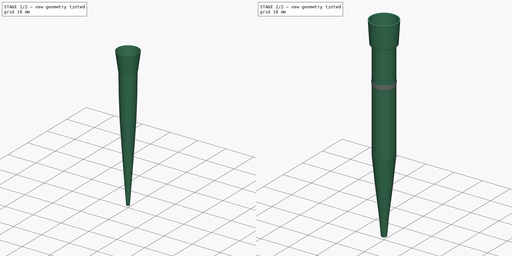
[diagram: build sequence overview — one tinted view per stage of 2, left to right]
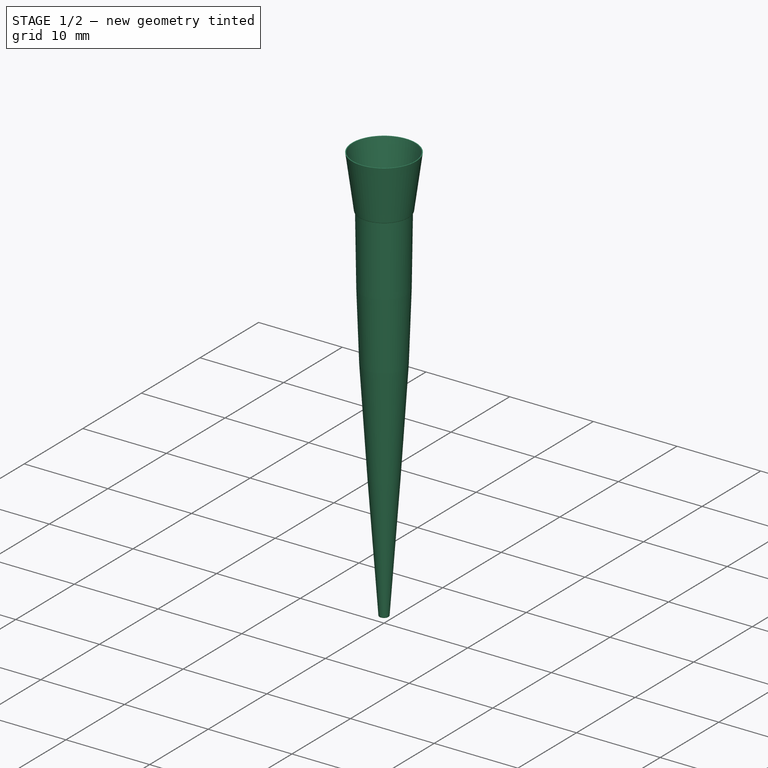
[diagram: stage 1 of 2 — iso view after this stage's code; geometry added in this stage tinted green]
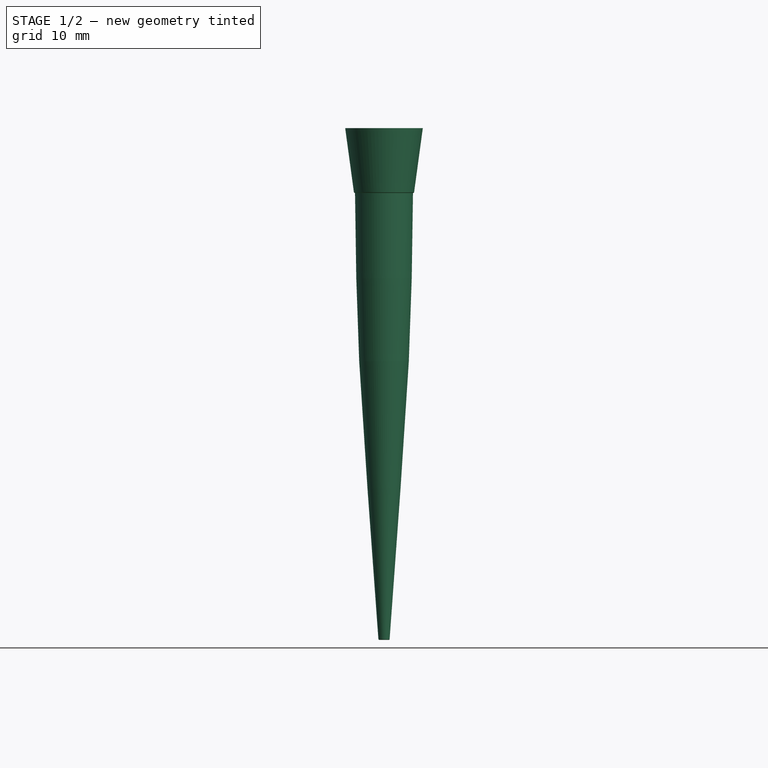
[diagram: stage 1 of 2 — front view after this stage's code; geometry added in this stage tinted green]
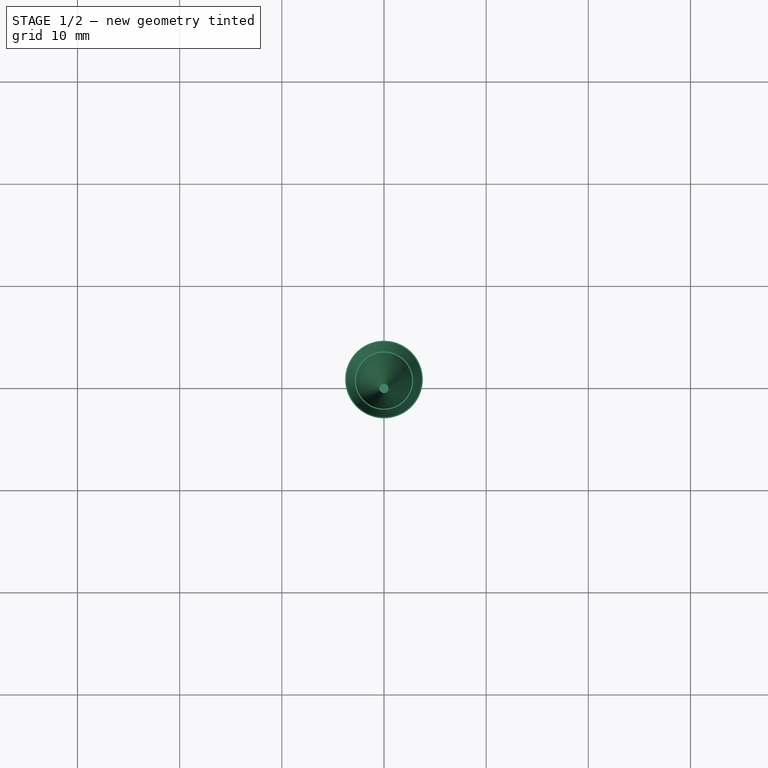
[diagram: stage 1 of 2 — top view after this stage's code; geometry added in this stage tinted green]
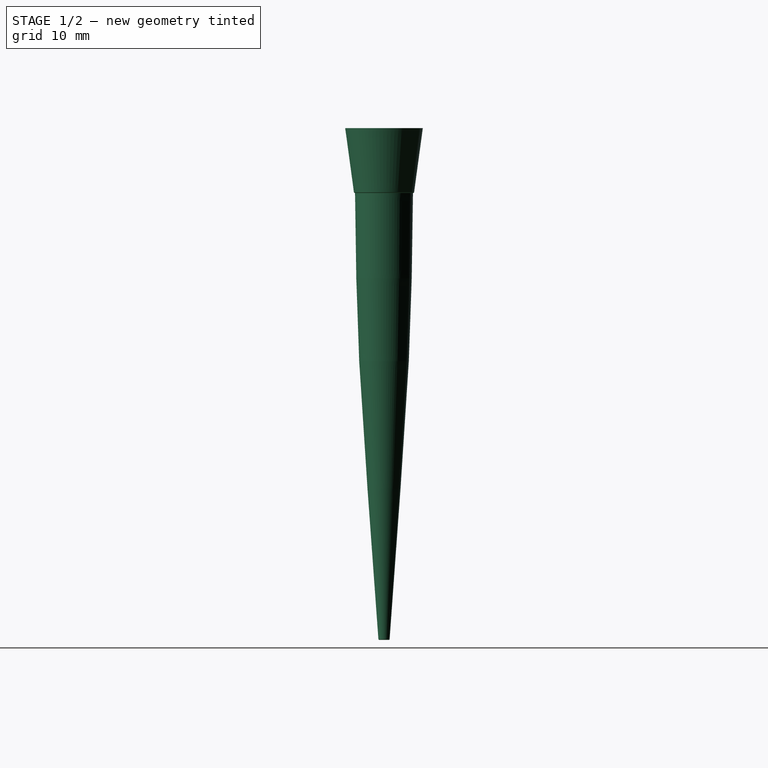
[diagram: stage 1 of 2 — right view after this stage's code; geometry added in this stage tinted green]
FCSTD DOCUMENT  (FreeCAD 0.20R27422 (Git))
Label: Pipette tips
License: All rights reserved
LicenseURL: http://en.wikipedia.org/wiki/All_rights_reserved
objects: Sketcher::SketchObject×2, Image::ImagePlane×2, PartDesign::Revolution×2, PartDesign::Body×2, Part::Thickness×2, TechDraw::DrawSVGTemplate×2, TechDraw::DrawPage×2, TechDraw::DrawViewPart×1
note: 10 computed .brp shape members not serialized (recipe doc carries the construction recipe); baked Part::Feature solids carry a one-line shape summary decoded from their .brp

FEATURE [Image::ImagePlane] ImagePlane001  label="ImagePlane 2-200"
  Placement = pos=(0,0,30.5) rot=(0.57735,0.57735,0.57735;2.0944rad)
  XSize = 46.2316
  YSize = 84.1801
FEATURE [Sketcher::SketchObject] Sketch001
  FullyConstrained = false
  MapMode = 5
  Placement = pos=(0,0,0) rot=(0.57735,0.57735,0.57735;2.0944rad)
  Support = -> [YZ_Plane001]
  sketch-geometry (9):
    g0: LineSegment StartX=0 StartY=0 StartZ=0 EndX=0.45 EndY=0 EndZ=0
    g1: LineSegment StartX=0.45 StartY=0 StartZ=0 EndX=1.51756 EndY=14.7217 EndZ=0
    g2: LineSegment StartX=1.51756 StartY=14.7217 StartZ=0 EndX=2.32977 EndY=27.1891 EndZ=0
    g3: LineSegment StartX=2.32977 StartY=27.1891 StartZ=0 EndX=2.61404 EndY=35.3 EndZ=0
    g4: LineSegment StartX=2.61404 StartY=35.3 StartZ=0 EndX=2.73889 EndY=43.75 EndZ=0
    g5: LineSegment StartX=2.73889 StartY=43.75 StartZ=0 EndX=2.85 EndY=43.75 EndZ=0
    g6: LineSegment StartX=2.85 StartY=43.75 StartZ=0 EndX=3.7 EndY=50 EndZ=0
    g7: LineSegment StartX=3.7 StartY=50 StartZ=0 EndX=0 EndY=50 EndZ=0
    g8: LineSegment StartX=0 StartY=0 StartZ=0 EndX=0 EndY=50 EndZ=0
  constraints (20):
    c: Coincident(g0,g-1)
    c: PointOnObject(g0,g-1)
    c: Coincident(g1,g0)
    c: Coincident(g2,g1)
    c: Coincident(g3,g2)
    c: Coincident(g4,g3)
    c: Coincident(g5,g4)
    c: Coincident(g6,g5)
    c: Coincident(g7,g6)
    c: PointOnObject(g7,g-2)
    c: Horizontal(g7)
    c: Horizontal(g5)
    c: DistanceX(g7,g5) = 2.85
    c: DistanceX(g7,g6) = 3.7
    c: DistanceY(g4,g6) = 6.25
    c: DistanceY(g0,g6) = 50
    c: DistanceY(g0,g3) = 35.3
    c: DistanceX(g0,g0) = 0.45
    c: Coincident(g8,g0)
    c: Coincident(g8,g7)
FEATURE [PartDesign::Revolution] Revolution001
  Angle = 360
  Axis = (-2e-16,3e-16,1)
  Base = (0,0,0)
  Placement = pos=(0,0,0) rot=(0.57735,0.57735,0.57735;2.0944rad)
  Profile = -> Sketch001
  ReferenceAxis = -> Sketch001 [V_Axis]
  Reversed = true
FEATURE [PartDesign::Body] Body001  label="2-200 tip base"
  Group = -> [Sketch001,Revolution001]
  Origin = -> Origin001
  Tip = -> Revolution001
FEATURE [Part::Thickness] Thickness001  label="2-200 tip"
  Faces = -> Revolution001 [Face8]
  Intersection = false
  Join = 0
  Mode = 0
  SelfIntersection = false
  Value = 0.1
FEATURE [TechDraw::DrawSVGTemplate] Template
  EditableTexts = Designed_by_Name=Designed by Name; Drawing_number=Drawing number; FC-Date=Date; FC-SC=Scale; FC-SH=Sheet; FC-Title=Title; Subtitle=Subtitle; Weight=Weight
  Height = 210
  Orientation = 1
  Width = 297
FEATURE [TechDraw::DrawPage] Page
  KeepUpdated = true
  NextBalloonIndex = 1
  ProjectionType = 0
  Template = -> Template
FEATURE [TechDraw::DrawSVGTemplate] Template001
  Height = 841
  Orientation = 1
  Width = 1189
FEATURE [TechDraw::DrawViewPart] View
  CoarseView = false
  Direction = (0.707,0,0.707)
  Focus = 100
  HardHidden = false
  IsoCount = 0
  IsoHidden = false
  IsoVisible = false
  LockPosition = false
  Perspective = false
  Rotation = 0
  ScaleType = 0
  SeamHidden = false
  SeamVisible = true
  SmoothHidden = false
  SmoothVisible = true
  Source = -> [Thickness001]
  X = 316.681
  XDirection = (0,1,0)
  Y = 384.674
FEATURE [TechDraw::DrawPage] Page001
  KeepUpdated = true
  NextBalloonIndex = 1
  ProjectionType = 0
  Template = -> Template001
  Views = -> [View]
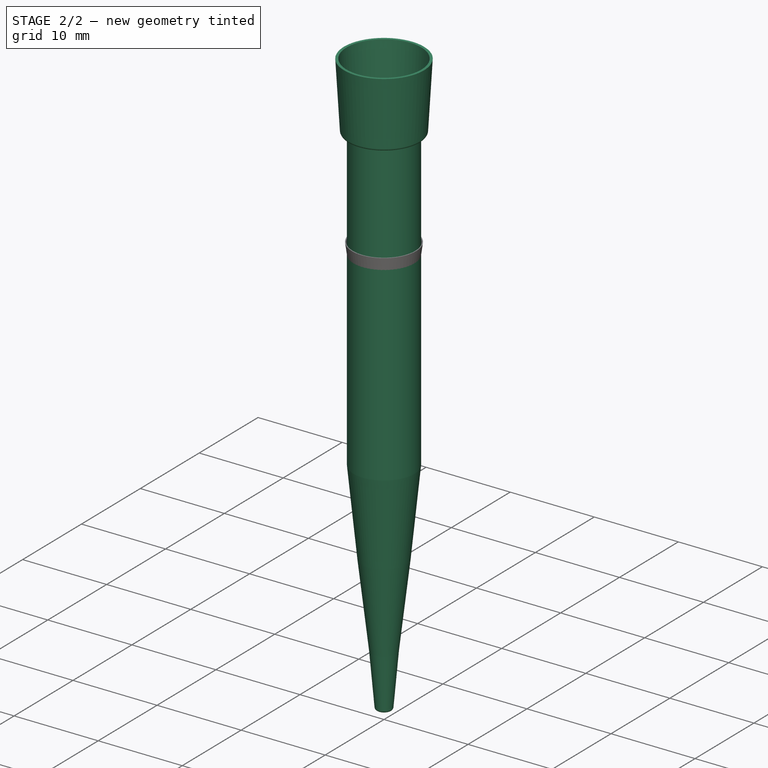
[diagram: stage 2 of 2 — iso view after this stage's code; geometry added in this stage tinted green]
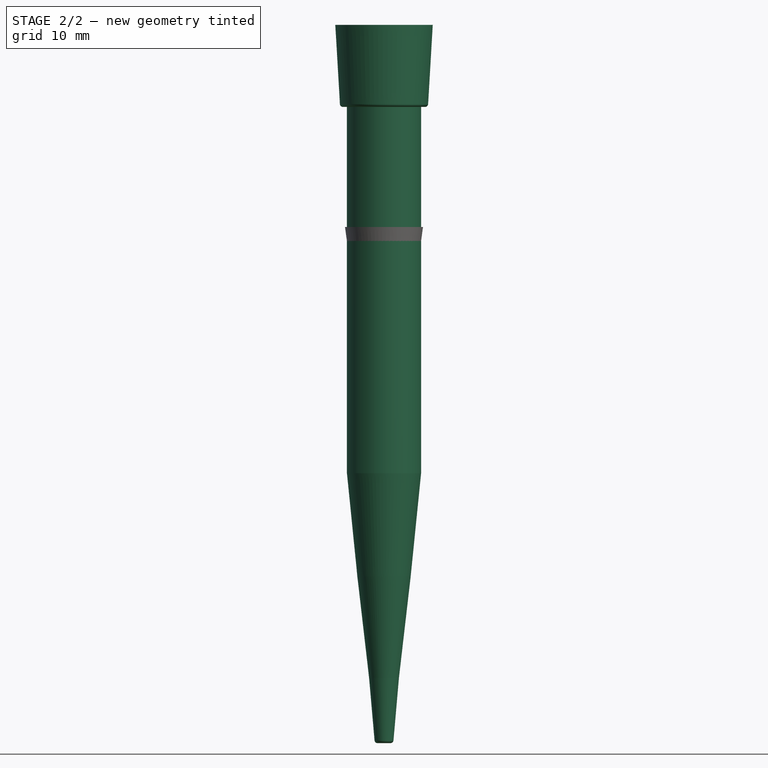
[diagram: stage 2 of 2 — front view after this stage's code; geometry added in this stage tinted green]
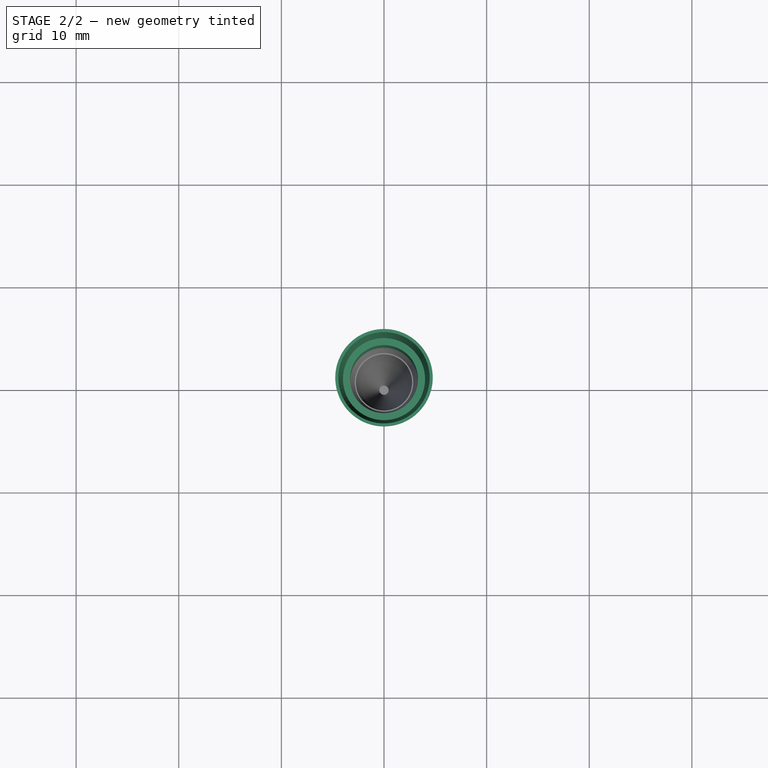
[diagram: stage 2 of 2 — top view after this stage's code; geometry added in this stage tinted green]
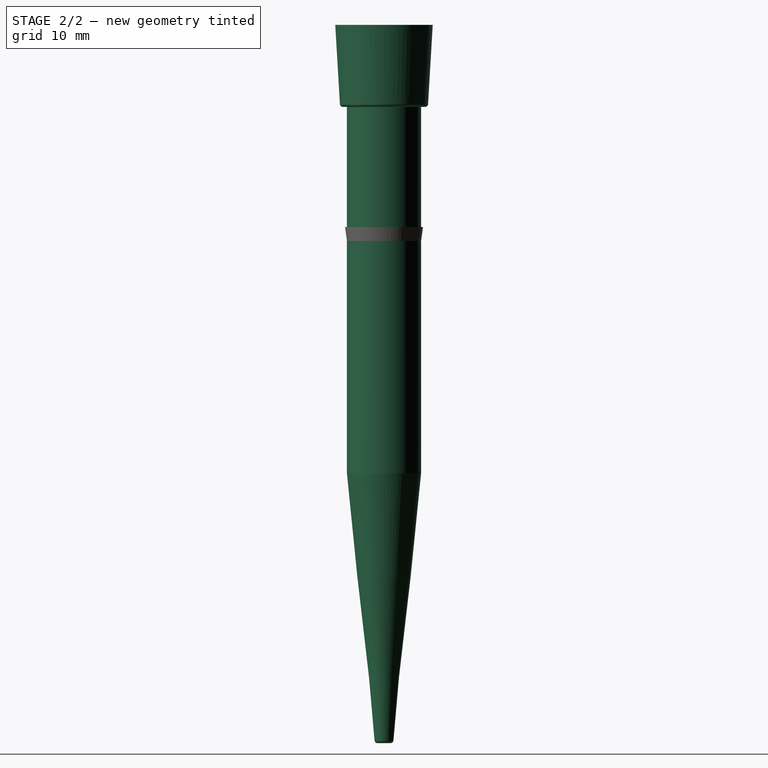
[diagram: stage 2 of 2 — right view after this stage's code; geometry added in this stage tinted green]
FEATURE [Sketcher::SketchObject] Sketch
  FullyConstrained = false
  MapMode = 5
  Placement = pos=(0,0,0) rot=(1,0,0;1.5708rad)
  Support = -> [XZ_Plane]
  sketch-geometry (10):
    g0: LineSegment StartX=0 StartY=0 StartZ=0 EndX=0.625 EndY=0 EndZ=0
    g1: LineSegment StartX=0.625 StartY=0 StartZ=0 EndX=1.15707 EndY=6.10005 EndZ=0
    g2: LineSegment StartX=1.15707 StartY=6.10005 StartZ=0 EndX=2.29826 EndY=15.9558 EndZ=0
    g3: LineSegment StartX=2.29826 StartY=15.9558 StartZ=0 EndX=3.31399 EndY=26.019 EndZ=0
    g4: LineSegment StartX=3.31399 StartY=62 StartZ=0 EndX=4 EndY=62 EndZ=0
    g5: LineSegment StartX=4 StartY=62 StartZ=0 EndX=4.45 EndY=69.7 EndZ=0
    g6: LineSegment StartX=4.45 StartY=69.7 StartZ=0 EndX=0 EndY=69.7 EndZ=0
    g7: LineSegment StartX=0 StartY=69.7 StartZ=0 EndX=0 EndY=0 EndZ=0
    g8: LineSegment StartX=3.31399 StartY=26.019 StartZ=0 EndX=3.31399 EndY=49.6 EndZ=0
    g9: LineSegment StartX=3.31399 StartY=49.6 StartZ=0 EndX=3.31399 EndY=62 EndZ=0
  constraints (22):
    c: Coincident(g0,g-1)
    c: Horizontal(g0)
    c: Coincident(g1,g0)
    c: Coincident(g2,g1)
    c: Coincident(g3,g2)
    c: Horizontal(g4)
    c: Coincident(g5,g4)
    c: Coincident(g6,g5)
    c: PointOnObject(g6,g-2)
    c: Horizontal(g6)
    c: Coincident(g7,g6)
    c: Coincident(g7,g0)
    c: DistanceX(g0,g0) = 0.625
    c: DistanceX(g6,g4) = 4
    c: DistanceX(g6,g5) = 4.45
    c: Coincident(g8,g3)
    c: DistanceY(g4,g5) = 7.7
    c: DistanceY(g0,g8) = 49.6
    c: DistanceY(g0,g6) = 69.7
    c: Coincident(g9,g8)
    c: Coincident(g9,g4)
    c: Vertical(g9)
FEATURE [Image::ImagePlane] ImagePlane  label="ImagePlane 50-1000"
  Placement = pos=(-10.8,0,37) rot=(-1,0,0;4.71239rad)
  XSize = 69.3957
  YSize = 100.346
FEATURE [PartDesign::Revolution] Revolution
  Angle = 360
  Axis = (0,2e-16,1)
  Base = (0,0,0)
  Placement = pos=(0,0,0) rot=(1,0,0;1.5708rad)
  Profile = -> Sketch
  ReferenceAxis = -> Sketch [V_Axis]
  Reversed = true
FEATURE [PartDesign::Body] Body  label="50-1000 tip base"
  Group = -> [Sketch,Revolution]
  Origin = -> Origin
  Tip = -> Revolution
FEATURE [Part::Thickness] Thickness  label="50-1000 tip"
  Faces = -> Revolution [Face9]
  Intersection = false
  Join = 0
  Mode = 0
  SelfIntersection = false
  Value = 0.3
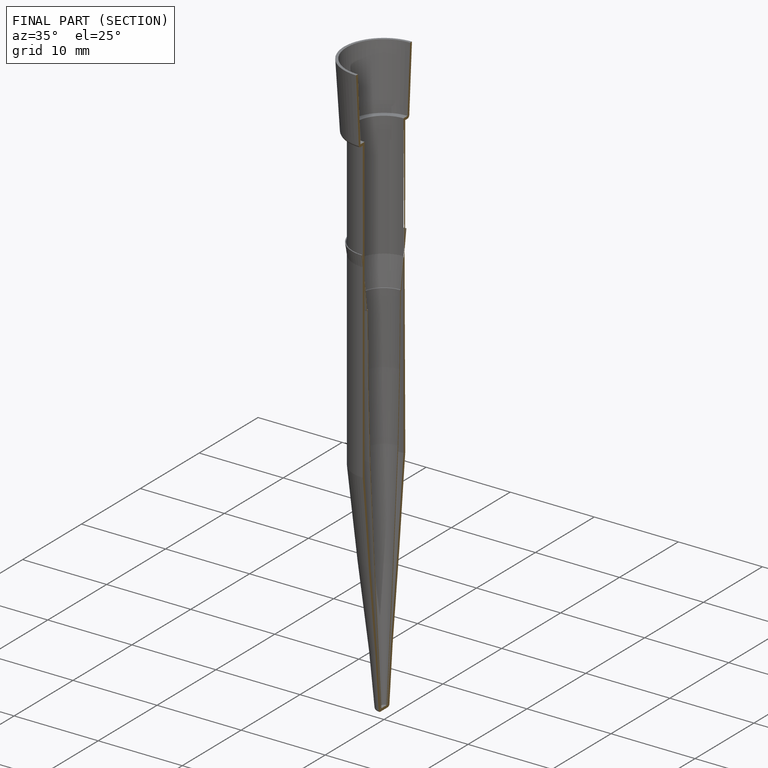
[diagram: finished part — half-section view (interior)]
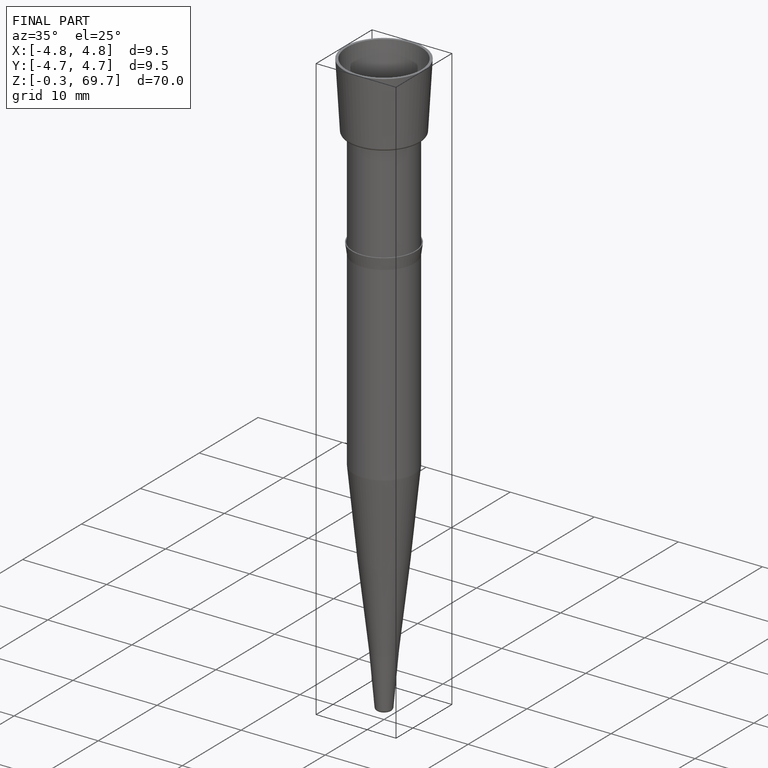
[diagram: finished part — iso view with bounding-box wireframe]
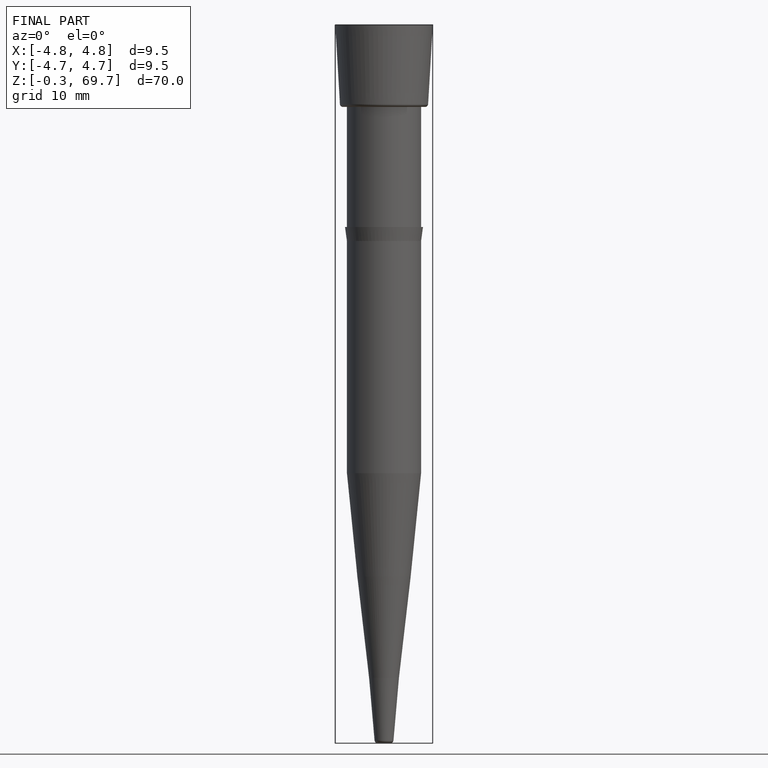
[diagram: finished part — front view with bounding-box wireframe]
